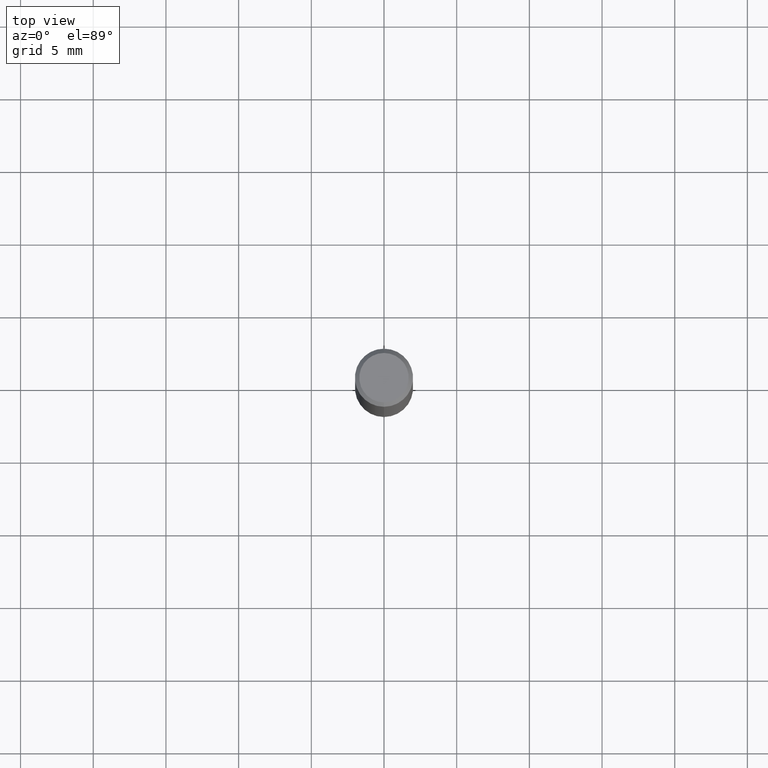
[diagram: clean part render]
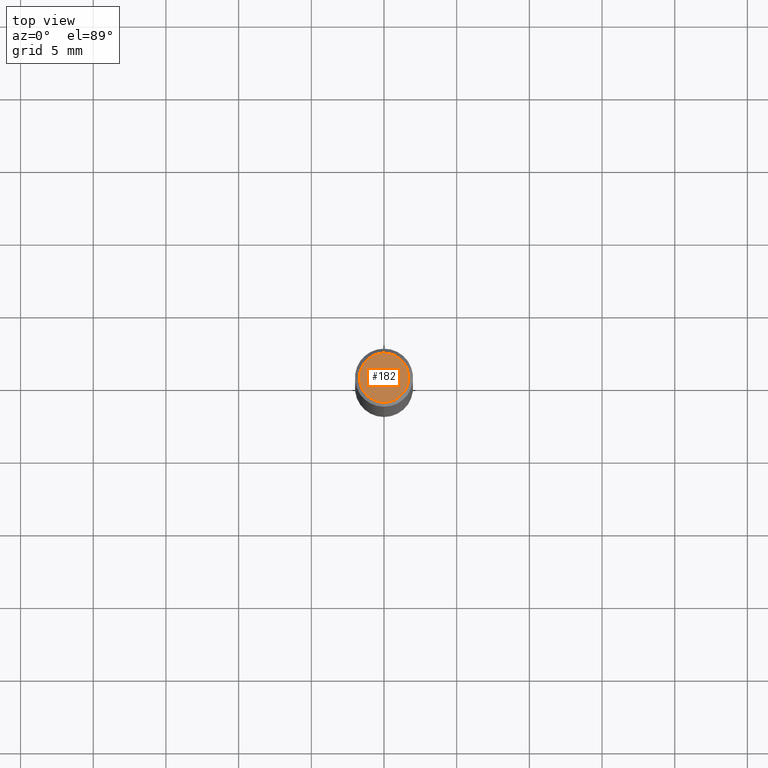
[diagram: same view with one face highlighted and labeled with its STEP entity id]
A machine part, top view. The second image highlights one B-rep face of the part: STEP entity #182.
In plain terms, the highlighted planar face has unit normal (-0, 0, 1).
Its self-contained STEP definition (entity closure, byte-faithful):
#88=EDGE_CURVE('',#130,#128,#210,.T.);
#128=VERTEX_POINT('',#255);
#130=VERTEX_POINT('',#257);
#168=EDGE_CURVE('',#128,#130,#298,.T.);
#182=ADVANCED_FACE('',(#316),#317,.T.);
#210=CIRCLE('',#340,1.7);
#255=CARTESIAN_POINT('',(0.0,1.7,0.0));
#257=CARTESIAN_POINT('',(2.08183080149804E-016,-1.7,0.0));
#298=CIRCLE('',#451,1.7);
#316=FACE_OUTER_BOUND('',#469,.T.);
#317=PLANE('',#470);
#340=AXIS2_PLACEMENT_3D('',#483,#484,#485);
#451=AXIS2_PLACEMENT_3D('',#586,#587,#588);
#469=EDGE_LOOP('',(#618,#619));
#470=AXIS2_PLACEMENT_3D('',#620,#621,#622);
#483=CARTESIAN_POINT('',(0.0,0.0,0.0));
#484=DIRECTION('',(0.0,0.0,-1.0));
#485=DIRECTION('',(0.0,1.0,0.0));
#586=CARTESIAN_POINT('',(0.0,0.0,0.0));
#587=DIRECTION('',(0.0,0.0,-1.0));
#588=DIRECTION('',(0.0,1.0,0.0));
#618=ORIENTED_EDGE('',*,*,#168,.F.);
#619=ORIENTED_EDGE('',*,*,#88,.F.);
#620=CARTESIAN_POINT('',(0.0,0.85,0.0));
#621=DIRECTION('',(-0.0,0.0,1.0));
#622=DIRECTION('',(0.0,-1.0,0.0));